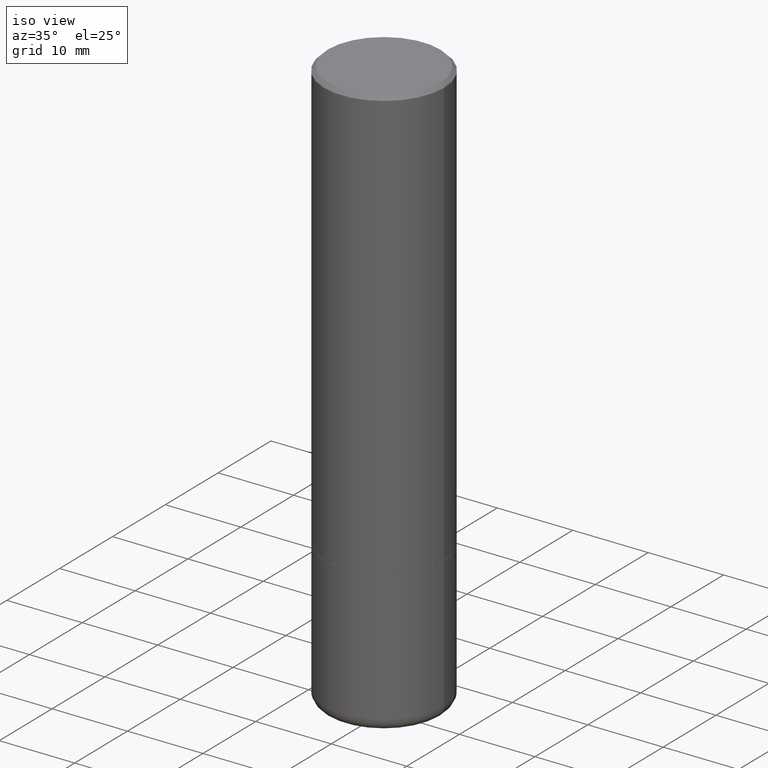
[diagram: clean part render]
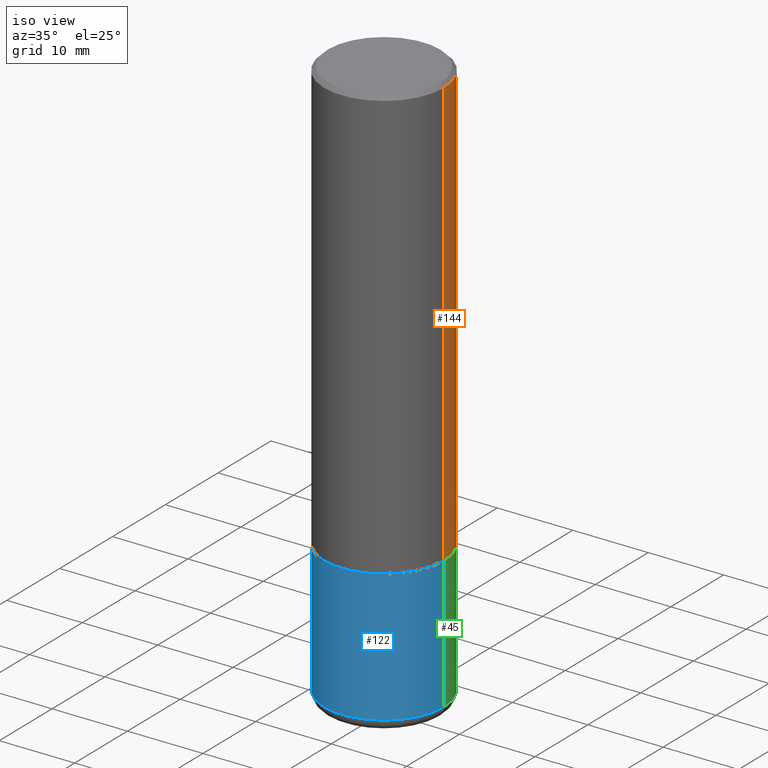
[diagram: same view with three faces highlighted in distinct colors, each labeled with its STEP entity id]
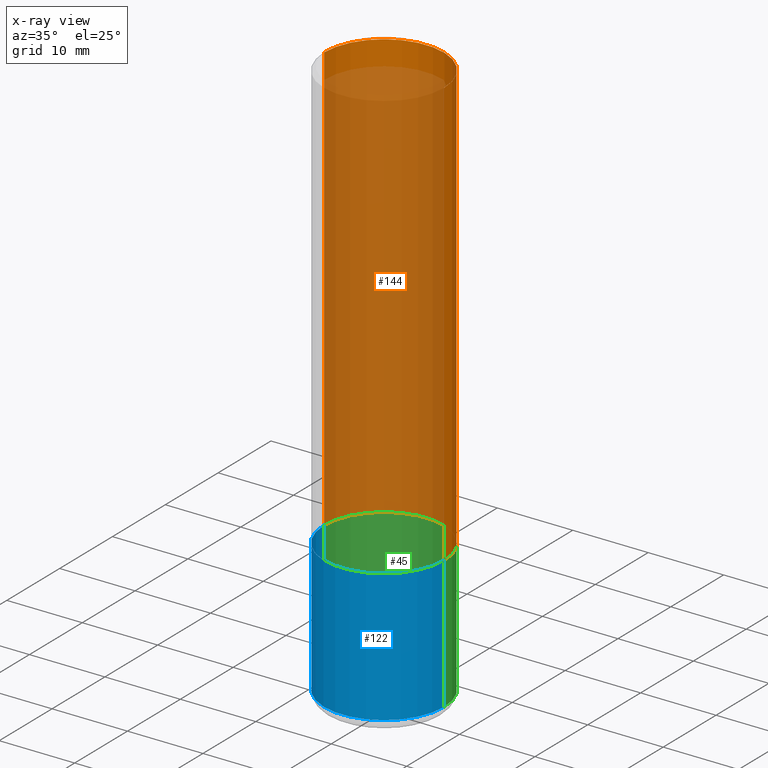
[diagram: x-ray of the same camera — body ghosted, the three highlighted faces saturated]
A machine part, iso view with three faces highlighted in distinct colors.
The next image is the same camera in x-ray (body ghosted, the three faces saturated) — at least one of them is partly hidden behind the body in this view.
Their STEP definitions:

[orange] entity #144 — the highlighted cylindrical surface (partial cylindrical patch) has radius 7.9375 mm, axis along (-0, 0, 1).
#4 = CARTESIAN_POINT ( 'NONE',  ( 0.3124999999999998335, -2.213735251080465334E-15, -0.02000000000000005246 ) ) ;
#25 = VERTEX_POINT ( 'NONE', #124 ) ;
#35 = DIRECTION ( 'NONE',  ( -2.445468806185136597E-29, 3.491481338843145583E-15, 1.000000000000000000 ) ) ;
#44 = LINE ( 'NONE', #240, #428 ) ;
#52 = VERTEX_POINT ( 'NONE', #155 ) ;
#79 = DIRECTION ( 'NONE',  ( -2.445468806185136597E-29, 3.491481338843145583E-15, 1.000000000000000000 ) ) ;
#85 = EDGE_LOOP ( 'NONE', ( #402, #327, #191, #322 ) ) ;
#91 = CIRCLE ( 'NONE', #367, 0.3124999999999998335 ) ;
#102 = EDGE_CURVE ( 'NONE', #128, #133, #91, .T. ) ;
#107 = LINE ( 'NONE', #245, #326 ) ;
#109 = EDGE_CURVE ( 'NONE', #52, #133, #44, .T. ) ;
#124 = CARTESIAN_POINT ( 'NONE',  ( 0.3125000000000000000, -1.003451736783519379E-14, -2.249000000000000110 ) ) ;
#128 = VERTEX_POINT ( 'NONE', #4 ) ;
#133 = VERTEX_POINT ( 'NONE', #175 ) ;
#143 = CARTESIAN_POINT ( 'NONE',  ( 5.499859345110372861E-29, -7.852341531058235441E-15, -2.249000000000000110 ) ) ;
#144 = ADVANCED_FACE ( 'NONE', ( #313 ), #146, .T. ) ;
#146 = CYLINDRICAL_SURFACE ( 'NONE', #173, 0.3124999999999998890 ) ;
#155 = CARTESIAN_POINT ( 'NONE',  ( -0.3125000000000000000, -1.740639529667233725E-15, -2.249000000000000110 ) ) ;
#173 = AXIS2_PLACEMENT_3D ( 'NONE', #316, #79, #409 ) ;
#175 = CARTESIAN_POINT ( 'NONE',  ( -0.3124999999999998335, 2.112346210000093866E-15, -0.02000000000000005246 ) ) ;
#186 = EDGE_CURVE ( 'NONE', #25, #52, #439, .T. ) ;
#191 = ORIENTED_EDGE ( 'NONE', *, *, #102, .F. ) ;
#201 = CARTESIAN_POINT ( 'NONE',  ( 4.890937612370285420E-31, -6.982962677686308865E-17, -0.02000000000000005246 ) ) ;
#213 = AXIS2_PLACEMENT_3D ( 'NONE', #143, #35, #349 ) ;
#216 = DIRECTION ( 'NONE',  ( -2.445468806185136877E-29, 3.491481338843145188E-15, 1.000000000000000000 ) ) ;
#240 = CARTESIAN_POINT ( 'NONE',  ( -0.3124999999999998890, 2.220446049250312292E-15, -1.537167215704657391E-29 ) ) ;
#245 = CARTESIAN_POINT ( 'NONE',  ( 0.3124999999999998890, -2.182175836776957558E-15, 1.523805242436229235E-29 ) ) ;
#279 = EDGE_CURVE ( 'NONE', #25, #128, #107, .T. ) ;
#313 = FACE_OUTER_BOUND ( 'NONE', #85, .T. ) ;
#316 = CARTESIAN_POINT ( 'NONE',  ( 0.000000000000000000, 0.000000000000000000, 0.000000000000000000 ) ) ;
#322 = ORIENTED_EDGE ( 'NONE', *, *, #279, .F. ) ;
#326 = VECTOR ( 'NONE', #362, 39.37007874015748143 ) ;
#327 = ORIENTED_EDGE ( 'NONE', *, *, #109, .T. ) ;
#349 = DIRECTION ( 'NONE',  ( 1.000000000000000000, -6.982962677686265133E-15, 0.000000000000000000 ) ) ;
#362 = DIRECTION ( 'NONE',  ( -2.445468806185136877E-29, 3.491481338843145188E-15, 1.000000000000000000 ) ) ;
#367 = AXIS2_PLACEMENT_3D ( 'NONE', #201, #405, #422 ) ;
#402 = ORIENTED_EDGE ( 'NONE', *, *, #186, .T. ) ;
#405 = DIRECTION ( 'NONE',  ( -2.445468806185136597E-29, 3.491481338843145583E-15, 1.000000000000000000 ) ) ;
#409 = DIRECTION ( 'NONE',  ( 1.000000000000000000, -6.982962677686266711E-15, 4.876176775795935232E-29 ) ) ;
#422 = DIRECTION ( 'NONE',  ( 1.000000000000000000, -6.982962677686265133E-15, 0.000000000000000000 ) ) ;
#428 = VECTOR ( 'NONE', #216, 39.37007874015748143 ) ;
#439 = CIRCLE ( 'NONE', #213, 0.3125000000000000000 ) ;

[blue] entity #122 — the highlighted cylindrical surface (partial cylindrical patch) has radius 7.9375 mm, axis along (-0, 0, 1).
#7 = DIRECTION ( 'NONE',  ( 1.000000000000000000, -6.982962677686269077E-15, 0.000000000000000000 ) ) ;
#17 = FACE_OUTER_BOUND ( 'NONE', #225, .T. ) ;
#37 = CARTESIAN_POINT ( 'NONE',  ( 5.502304813916558464E-29, -7.855833012397078448E-15, -2.250000000000000444 ) ) ;
#40 = CARTESIAN_POINT ( 'NONE',  ( 7.189678290184301639E-29, -1.026495513619884961E-14, -2.940000000000000391 ) ) ;
#53 = VERTEX_POINT ( 'NONE', #234 ) ;
#75 = DIRECTION ( 'NONE',  ( -2.445468806185136597E-29, 3.491481338843145583E-15, 1.000000000000000000 ) ) ;
#82 = EDGE_CURVE ( 'NONE', #429, #53, #193, .T. ) ;
#94 = VERTEX_POINT ( 'NONE', #373 ) ;
#108 = CARTESIAN_POINT ( 'NONE',  ( -0.3125000000000000000, -8.044509086948536533E-15, -2.940000000000000391 ) ) ;
#114 = LINE ( 'NONE', #211, #385 ) ;
#115 = AXIS2_PLACEMENT_3D ( 'NONE', #40, #169, #277 ) ;
#118 = ORIENTED_EDGE ( 'NONE', *, *, #262, .F. ) ;
#122 = ADVANCED_FACE ( 'NONE', ( #17 ), #179, .T. ) ;
#126 = EDGE_CURVE ( 'NONE', #94, #302, #114, .T. ) ;
#131 = VECTOR ( 'NONE', #434, 39.37007874015748143 ) ;
#139 = CIRCLE ( 'NONE', #115, 0.3125000000000000000 ) ;
#159 = CARTESIAN_POINT ( 'NONE',  ( 0.3125000000000000000, -1.003800884917403837E-14, -2.250000000000000444 ) ) ;
#169 = DIRECTION ( 'NONE',  ( -2.445468806185136597E-29, 3.491481338843145583E-15, 1.000000000000000000 ) ) ;
#179 = CYLINDRICAL_SURFACE ( 'NONE', #320, 0.3125000000000000000 ) ;
#193 = LINE ( 'NONE', #330, #131 ) ;
#204 = CIRCLE ( 'NONE', #360, 0.3125000000000000000 ) ;
#207 = DIRECTION ( 'NONE',  ( 1.000000000000000000, -6.982962677686266711E-15, 4.876176775795936353E-29 ) ) ;
#211 = CARTESIAN_POINT ( 'NONE',  ( 0.3125000000000000000, -2.182175836776958347E-15, 1.523805242436230075E-29 ) ) ;
#225 = EDGE_LOOP ( 'NONE', ( #299, #394, #336, #118 ) ) ;
#234 = CARTESIAN_POINT ( 'NONE',  ( -0.3125000000000000000, -6.839948025047650950E-15, -2.250000000000000444 ) ) ;
#236 = EDGE_CURVE ( 'NONE', #429, #94, #139, .T. ) ;
#262 = EDGE_CURVE ( 'NONE', #53, #302, #204, .T. ) ;
#277 = DIRECTION ( 'NONE',  ( 1.000000000000000000, -6.982962677686269077E-15, 0.000000000000000000 ) ) ;
#284 = CARTESIAN_POINT ( 'NONE',  ( 0.000000000000000000, 0.000000000000000000, 0.000000000000000000 ) ) ;
#299 = ORIENTED_EDGE ( 'NONE', *, *, #82, .F. ) ;
#302 = VERTEX_POINT ( 'NONE', #159 ) ;
#309 = DIRECTION ( 'NONE',  ( -2.445468806185136877E-29, 3.491481338843145188E-15, 1.000000000000000000 ) ) ;
#318 = DIRECTION ( 'NONE',  ( -2.445468806185136597E-29, 3.491481338843145583E-15, 1.000000000000000000 ) ) ;
#320 = AXIS2_PLACEMENT_3D ( 'NONE', #284, #318, #207 ) ;
#330 = CARTESIAN_POINT ( 'NONE',  ( -0.3125000000000000000, 2.220446049250313081E-15, -1.537167215704658232E-29 ) ) ;
#336 = ORIENTED_EDGE ( 'NONE', *, *, #126, .T. ) ;
#360 = AXIS2_PLACEMENT_3D ( 'NONE', #37, #75, #7 ) ;
#373 = CARTESIAN_POINT ( 'NONE',  ( 0.3125000000000000000, -1.244713097297580796E-14, -2.940000000000000391 ) ) ;
#385 = VECTOR ( 'NONE', #309, 39.37007874015748143 ) ;
#394 = ORIENTED_EDGE ( 'NONE', *, *, #236, .T. ) ;
#429 = VERTEX_POINT ( 'NONE', #108 ) ;
#434 = DIRECTION ( 'NONE',  ( -2.445468806185136877E-29, 3.491481338843145188E-15, 1.000000000000000000 ) ) ;

[green] entity #45 — the highlighted cylindrical surface (partial cylindrical patch) has radius 7.9375 mm, axis along (-0, 0, 1).
#13 = CARTESIAN_POINT ( 'NONE',  ( 7.189678290184301639E-29, -1.026495513619884961E-14, -2.940000000000000391 ) ) ;
#18 = AXIS2_PLACEMENT_3D ( 'NONE', #13, #219, #386 ) ;
#23 = ORIENTED_EDGE ( 'NONE', *, *, #82, .T. ) ;
#24 = DIRECTION ( 'NONE',  ( -2.445468806185136597E-29, 3.491481338843145583E-15, 1.000000000000000000 ) ) ;
#45 = ADVANCED_FACE ( 'NONE', ( #232 ), #230, .T. ) ;
#53 = VERTEX_POINT ( 'NONE', #234 ) ;
#73 = DIRECTION ( 'NONE',  ( 1.000000000000000000, -6.982962677686269077E-15, 0.000000000000000000 ) ) ;
#82 = EDGE_CURVE ( 'NONE', #429, #53, #193, .T. ) ;
#94 = VERTEX_POINT ( 'NONE', #373 ) ;
#96 = DIRECTION ( 'NONE',  ( 1.000000000000000000, -6.982962677686266711E-15, 4.876176775795936353E-29 ) ) ;
#108 = CARTESIAN_POINT ( 'NONE',  ( -0.3125000000000000000, -8.044509086948536533E-15, -2.940000000000000391 ) ) ;
#113 = CIRCLE ( 'NONE', #18, 0.3125000000000000000 ) ;
#114 = LINE ( 'NONE', #211, #385 ) ;
#125 = CIRCLE ( 'NONE', #289, 0.3125000000000000000 ) ;
#126 = EDGE_CURVE ( 'NONE', #94, #302, #114, .T. ) ;
#131 = VECTOR ( 'NONE', #434, 39.37007874015748143 ) ;
#159 = CARTESIAN_POINT ( 'NONE',  ( 0.3125000000000000000, -1.003800884917403837E-14, -2.250000000000000444 ) ) ;
#192 = EDGE_CURVE ( 'NONE', #94, #429, #113, .T. ) ;
#193 = LINE ( 'NONE', #330, #131 ) ;
#198 = EDGE_LOOP ( 'NONE', ( #355, #23, #398, #291 ) ) ;
#211 = CARTESIAN_POINT ( 'NONE',  ( 0.3125000000000000000, -2.182175836776958347E-15, 1.523805242436230075E-29 ) ) ;
#219 = DIRECTION ( 'NONE',  ( -2.445468806185136597E-29, 3.491481338843145583E-15, 1.000000000000000000 ) ) ;
#230 = CYLINDRICAL_SURFACE ( 'NONE', #333, 0.3125000000000000000 ) ;
#232 = FACE_OUTER_BOUND ( 'NONE', #198, .T. ) ;
#234 = CARTESIAN_POINT ( 'NONE',  ( -0.3125000000000000000, -6.839948025047650950E-15, -2.250000000000000444 ) ) ;
#289 = AXIS2_PLACEMENT_3D ( 'NONE', #418, #380, #73 ) ;
#291 = ORIENTED_EDGE ( 'NONE', *, *, #126, .F. ) ;
#302 = VERTEX_POINT ( 'NONE', #159 ) ;
#309 = DIRECTION ( 'NONE',  ( -2.445468806185136877E-29, 3.491481338843145188E-15, 1.000000000000000000 ) ) ;
#330 = CARTESIAN_POINT ( 'NONE',  ( -0.3125000000000000000, 2.220446049250313081E-15, -1.537167215704658232E-29 ) ) ;
#333 = AXIS2_PLACEMENT_3D ( 'NONE', #361, #24, #96 ) ;
#340 = EDGE_CURVE ( 'NONE', #302, #53, #125, .T. ) ;
#355 = ORIENTED_EDGE ( 'NONE', *, *, #192, .T. ) ;
#361 = CARTESIAN_POINT ( 'NONE',  ( 0.000000000000000000, 0.000000000000000000, 0.000000000000000000 ) ) ;
#373 = CARTESIAN_POINT ( 'NONE',  ( 0.3125000000000000000, -1.244713097297580796E-14, -2.940000000000000391 ) ) ;
#380 = DIRECTION ( 'NONE',  ( -2.445468806185136597E-29, 3.491481338843145583E-15, 1.000000000000000000 ) ) ;
#385 = VECTOR ( 'NONE', #309, 39.37007874015748143 ) ;
#386 = DIRECTION ( 'NONE',  ( 1.000000000000000000, -6.982962677686269077E-15, 0.000000000000000000 ) ) ;
#398 = ORIENTED_EDGE ( 'NONE', *, *, #340, .F. ) ;
#418 = CARTESIAN_POINT ( 'NONE',  ( 5.502304813916558464E-29, -7.855833012397078448E-15, -2.250000000000000444 ) ) ;
#429 = VERTEX_POINT ( 'NONE', #108 ) ;
#434 = DIRECTION ( 'NONE',  ( -2.445468806185136877E-29, 3.491481338843145188E-15, 1.000000000000000000 ) ) ;